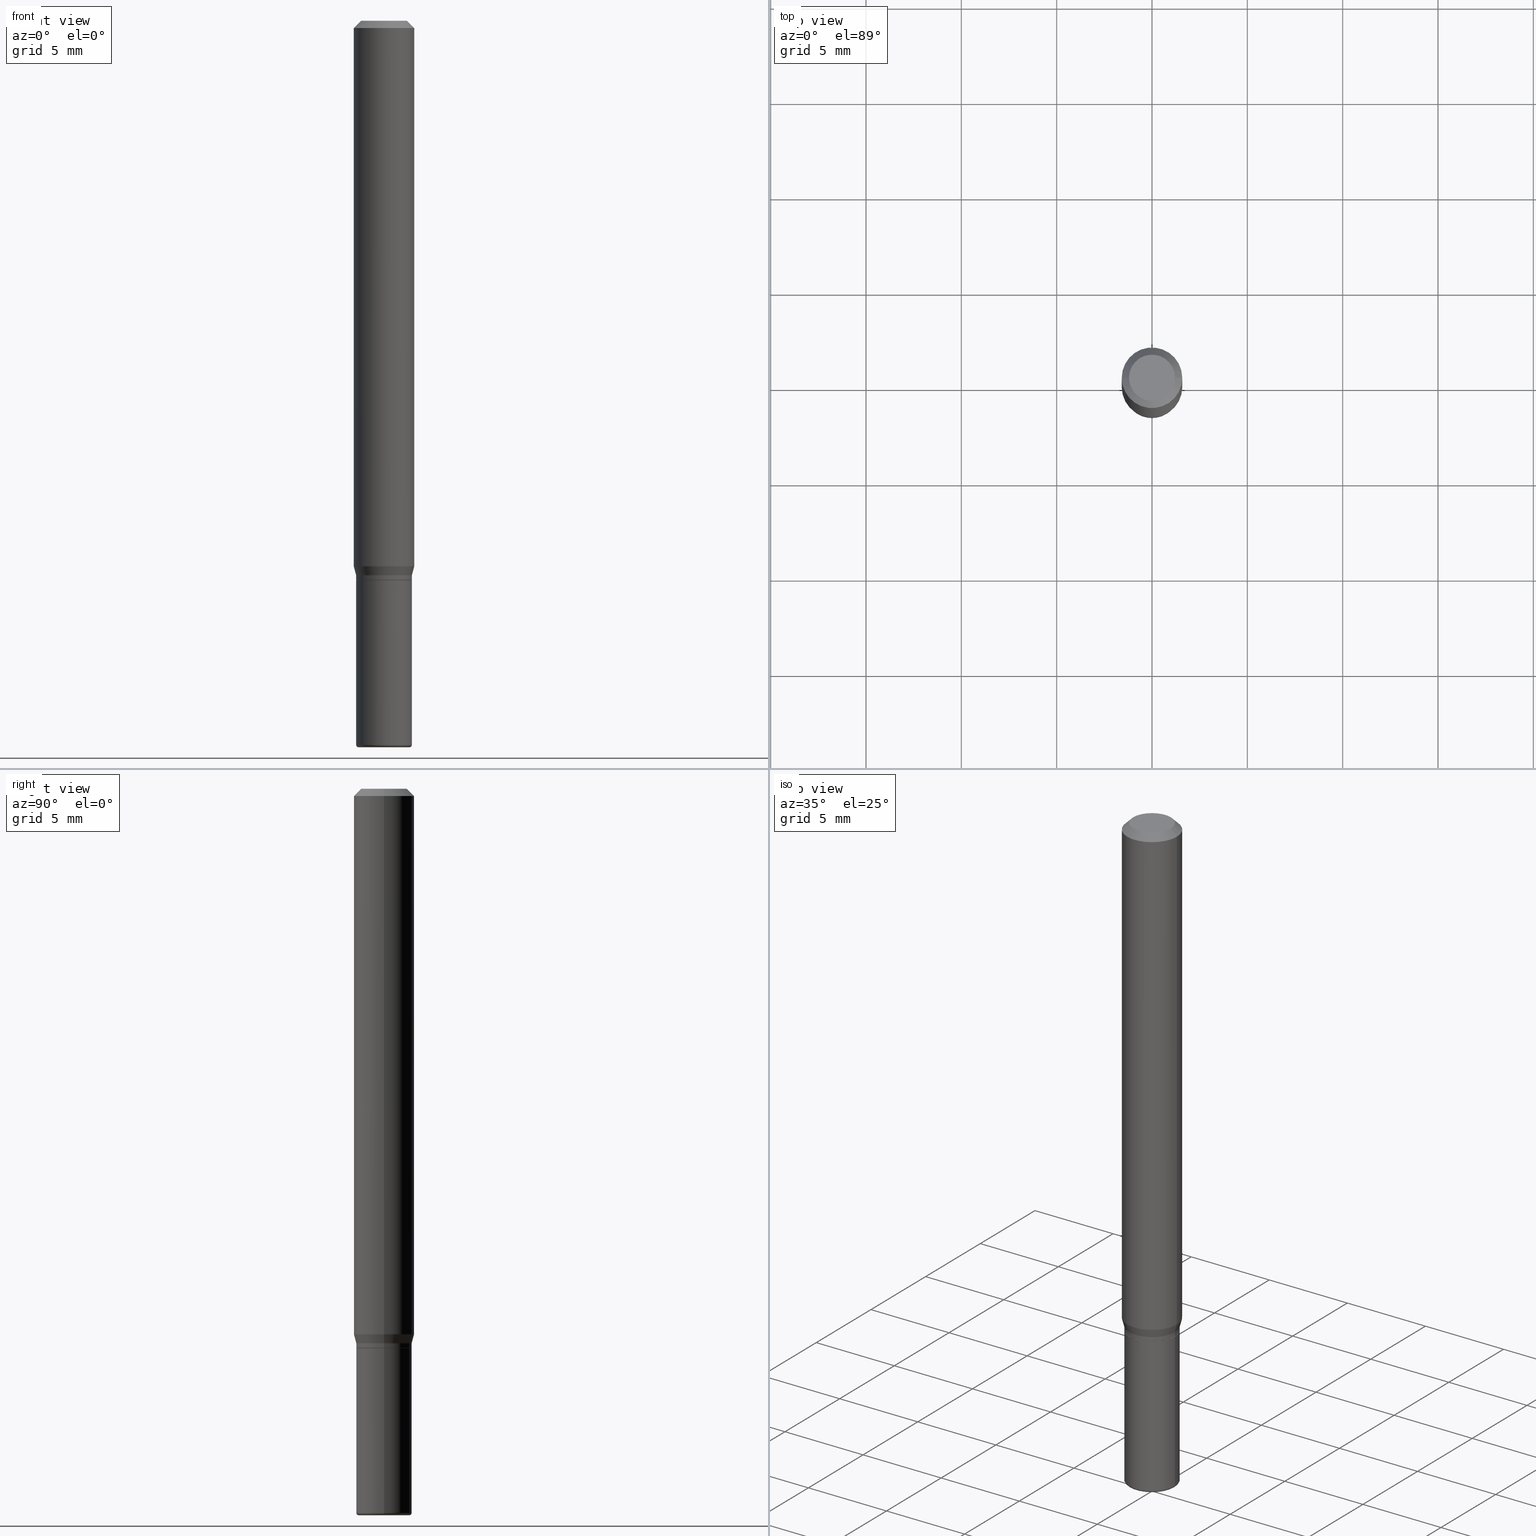
[diagram: canonical four-view strip — front | top / right | iso, engineering-drawing reading convention]
A machine part, canonical four-view strip (front | top / right | iso — engineering-drawing reading convention). The complete STEP part file that produces these views, byte-faithful:
ISO-10303-21;
HEADER;
FILE_DESCRIPTION (( 'STEP AP203' ),
    '1' );
FILE_NAME ('09107.STEP',
    '2024-02-29T22:12:22',
    ( '' ),
    ( '' ),
    'SwSTEP 2.0',
    'SolidWorks 2023',
    '' );
FILE_SCHEMA (( 'CONFIG_CONTROL_DESIGN' ));
ENDSEC;

DATA;
#1 = CARTESIAN_POINT ( 'NONE',  ( 0.05750000000000008576, -4.015203539669609078E-16, 2.803801646082667145E-30 ) ) ;
#2 = ORIENTED_EDGE ( 'NONE', *, *, #463, .F. ) ;
#3 = VECTOR ( 'NONE', #17, 39.37007874015748143 ) ;
#4 = CARTESIAN_POINT ( 'NONE',  ( 0.06250000000000000000, -4.888073874380378612E-16, -0.01499999999999970281 ) ) ;
#5 = CONICAL_SURFACE ( 'NONE', #368, 0.05700000000000008532, 0.7853981633975507526 ) ;
#6 = EDGE_CURVE ( 'NONE', #97, #342, #143, .T. ) ;
#7 = ORIENTED_EDGE ( 'NONE', *, *, #343, .F. ) ;
#8 = CARTESIAN_POINT ( 'NONE',  ( 3.655975865246779122E-29, -5.219764601570503141E-15, -1.495000000000000107 ) ) ;
#9 = EDGE_LOOP ( 'NONE', ( #447, #286, #411, #105 ) ) ;
#10 = DIRECTION ( 'NONE',  ( 1.000000000000000000, -6.982962677686271444E-15, 0.000000000000000000 ) ) ;
#11 = CARTESIAN_POINT ( 'NONE',  ( 3.668203209277632395E-31, -5.237222008264614861E-17, -0.01499999999999970281 ) ) ;
#12 = CARTESIAN_POINT ( 'NONE',  ( 0.05750000000000008576, -4.432435559661373477E-15, -1.154500000000000304 ) ) ;
#13 = AXIS2_PLACEMENT_3D ( 'NONE', #373, #42, #365 ) ;
#14 = CIRCLE ( 'NONE', #318, 0.05750000000000008576 ) ;
#15 = ORIENTED_EDGE ( 'NONE', *, *, #188, .T. ) ;
#16 = PRODUCT_DEFINITION_SHAPE ( 'NONE', 'NONE',  #117 ) ;
#17 = DIRECTION ( 'NONE',  ( -2.445468806185136877E-29, 3.491481338843145188E-15, 1.000000000000000000 ) ) ;
#18 = CARTESIAN_POINT ( 'NONE',  ( -6.680649051745406845E-45, 9.538196290434862081E-31, 2.731847993664263218E-16 ) ) ;
#19 = CARTESIAN_POINT ( 'NONE',  ( 3.668203209277632395E-31, -5.237222008264614861E-17, -0.01499999999999970281 ) ) ;
#20 = DIRECTION ( 'NONE',  ( 1.000000000000000000, -6.982962677686266711E-15, 4.852736867747365086E-29 ) ) ;
#21 = CARTESIAN_POINT ( 'NONE',  ( 0.05250000000000000500, -5.603827548843248915E-15, -1.500000000000000444 ) ) ;
#22 = CC_DESIGN_PERSON_AND_ORGANIZATION_ASSIGNMENT ( #70, #470, ( #117 ) ) ;
#23 = CIRCLE ( 'NONE', #282, 0.05700000000000008532 ) ;
#24 = ADVANCED_FACE ( 'NONE', ( #179 ), #258, .T. ) ;
#25 =( LENGTH_UNIT ( ) NAMED_UNIT ( * ) SI_UNIT ( $, .METRE. ) );
#26 = APPROVAL_STATUS ( 'not_yet_approved' ) ;
#27 = CARTESIAN_POINT ( 'NONE',  ( -0.05750000000000016903, -4.217650700905109109E-15, -1.495000000000000107 ) ) ;
#28 = SECURITY_CLASSIFICATION ( '', '', #324 ) ;
#29 = APPROVAL_DATE_TIME ( #235, #172 ) ;
#30 = DIRECTION ( 'NONE',  ( 1.000000000000000000, -6.982962677686262766E-15, 0.000000000000000000 ) ) ;
#31 = COORDINATED_UNIVERSAL_TIME_OFFSET ( 5, 0, .BEHIND. ) ;
#32 = DIRECTION ( 'NONE',  ( 2.438088387897960049E-29, -3.491481338843145188E-15, -1.000000000000000000 ) ) ;
#33 = DIRECTION ( 'NONE',  ( -1.000000000000000000, 7.105427357601061812E-15, 0.000000000000000000 ) ) ;
#34 = EDGE_LOOP ( 'NONE', ( #38, #169, #90, #83 ) ) ;
#35 = VECTOR ( 'NONE', #208, 39.37007874015748143 ) ;
#36 = VECTOR ( 'NONE', #243, 39.37007874015748143 ) ;
#37 = CARTESIAN_POINT ( 'NONE',  ( -0.05750000000000000250, -4.217650700905109898E-15, -1.155000000000000027 ) ) ;
#38 = ORIENTED_EDGE ( 'NONE', *, *, #240, .F. ) ;
#39 = CARTESIAN_POINT ( 'NONE',  ( 2.824516471143833307E-29, -4.032660946363833383E-15, -1.155000000000000027 ) ) ;
#40 = ORIENTED_EDGE ( 'NONE', *, *, #269, .T. ) ;
#41 = ADVANCED_FACE ( 'NONE', ( #461 ), #167, .T. ) ;
#42 = DIRECTION ( 'NONE',  ( -2.438088387897960049E-29, 3.491481338843145188E-15, 1.000000000000000000 ) ) ;
#43 = ORIENTED_EDGE ( 'NONE', *, *, #102, .F. ) ;
#44 = AXIS2_PLACEMENT_3D ( 'NONE', #49, #217, #96 ) ;
#45 = DIRECTION ( 'NONE',  ( 1.000000000000000000, -6.982962677686263555E-15, 0.000000000000000000 ) ) ;
#46 = ORIENTED_EDGE ( 'NONE', *, *, #514, .F. ) ;
#47 = CARTESIAN_POINT ( 'NONE',  ( -0.06250000000000000000, -1.548394002303359430E-15, -0.01499999999999970281 ) ) ;
#48 = VERTEX_POINT ( 'NONE', #491 ) ;
#49 = CARTESIAN_POINT ( 'NONE',  ( 2.824516471143833307E-29, -4.032660946363833383E-15, -1.155000000000000027 ) ) ;
#50 = ORIENTED_EDGE ( 'NONE', *, *, #463, .T. ) ;
#51 = ADVANCED_FACE ( 'NONE', ( #94 ), #5, .T. ) ;
#52 = DIRECTION ( 'NONE',  ( -1.000000000000000000, 6.982962677686265922E-15, -4.876176775795935793E-29 ) ) ;
#53 = AXIS2_PLACEMENT_3D ( 'NONE', #281, #444, #314 ) ;
#54 = AXIS2_PLACEMENT_3D ( 'NONE', #425, #497, #141 ) ;
#55 = CIRCLE ( 'NONE', #185, 0.05750000000000000250 ) ;
#56 = ORIENTED_EDGE ( 'NONE', *, *, #93, .T. ) ;
#57 = PERSON_AND_ORGANIZATION ( #75, #142 ) ;
#58 = CARTESIAN_POINT ( 'NONE',  ( 0.000000000000000000, 0.000000000000000000, 0.000000000000000000 ) ) ;
#59 = DIRECTION ( 'NONE',  ( 1.000000000000000000, -6.982962677686267499E-15, 0.000000000000000000 ) ) ;
#60 = EDGE_CURVE ( 'NONE', #364, #207, #55, .T. ) ;
#61 = CARTESIAN_POINT ( 'NONE',  ( 3.668203209277706016E-29, -5.237222008264719754E-15, -1.500000000000000444 ) ) ;
#62 = VECTOR ( 'NONE', #137, 39.37007874015748143 ) ;
#63 = CIRCLE ( 'NONE', #89, 0.05700000000000008532 ) ;
#64 = ORIENTED_EDGE ( 'NONE', *, *, #91, .F. ) ;
#65 = PLANE ( 'NONE',  #472 ) ;
#66 = PERSON_AND_ORGANIZATION ( #75, #142 ) ;
#67 = DIRECTION ( 'NONE',  ( -2.445468806185136597E-29, 3.491481338843145583E-15, 1.000000000000000000 ) ) ;
#68 = DIRECTION ( 'NONE',  ( 1.000000000000000000, -6.982962677686274599E-15, 0.000000000000000000 ) ) ;
#69 = LOCAL_TIME ( 17, 12, 22.00000000000000000, #159 ) ;
#70 = PERSON_AND_ORGANIZATION ( #75, #142 ) ;
#71 = CARTESIAN_POINT ( 'NONE',  ( 3.316907271900976589E-16, 0.04750000000000000749, -2.925296391183627249E-17 ) ) ;
#72 = FACE_OUTER_BOUND ( 'NONE', #319, .T. ) ;
#73 = PRODUCT_RELATED_PRODUCT_CATEGORY ( 'detail', '', ( #95 ) ) ;
#74 = EDGE_LOOP ( 'NONE', ( #357, #284, #480, #50 ) ) ;
#75 = PERSON ( 'UNSPECIFIED', 'UNSPECIFIED', 'UNSPECIFIED', ('UNSPECIFIED'), ('UNSPECIFIED'), ('UNSPECIFIED') ) ;
#76 = DATE_TIME_ROLE ( 'creation_date' ) ;
#77 = DIRECTION ( 'NONE',  ( 1.000000000000000000, -6.982962677686274599E-15, 0.000000000000000000 ) ) ;
#78 = VERTEX_POINT ( 'NONE', #101 ) ;
#79 = CARTESIAN_POINT ( 'NONE',  ( -0.05750000000000008576, 4.085620730620582163E-16, -2.828387676896575267E-30 ) ) ;
#80 = VERTEX_POINT ( 'NONE', #377 ) ;
#81 = EDGE_CURVE ( 'NONE', #48, #275, #493, .T. ) ;
#82 = DIRECTION ( 'NONE',  ( -2.445468806185136597E-29, 3.491481338843145583E-15, 1.000000000000000000 ) ) ;
#83 = ORIENTED_EDGE ( 'NONE', *, *, #269, .F. ) ;
#84 = DIRECTION ( 'NONE',  ( 1.000000000000000000, -6.982962677686274599E-15, 0.000000000000000000 ) ) ;
#85 = EDGE_LOOP ( 'NONE', ( #136, #56 ) ) ;
#86 = AXIS2_PLACEMENT_3D ( 'NONE', #18, #391, #20 ) ;
#87 = AXIS2_PLACEMENT_3D ( 'NONE', #19, #257, #346 ) ;
#88 = DIRECTION ( 'NONE',  ( 0.7071067811866199593, -2.468850131083015945E-15, 0.7071067811864750752 ) ) ;
#89 = AXIS2_PLACEMENT_3D ( 'NONE', #39, #376, #10 ) ;
#90 = ORIENTED_EDGE ( 'NONE', *, *, #209, .T. ) ;
#91 = EDGE_CURVE ( 'NONE', #237, #414, #458, .T. ) ;
#92 = CARTESIAN_POINT ( 'NONE',  ( 0.06250000000000000000, -4.369029371579589866E-15, -1.126339745962156247 ) ) ;
#93 = EDGE_CURVE ( 'NONE', #129, #237, #453, .T. ) ;
#94 = FACE_OUTER_BOUND ( 'NONE', #123, .T. ) ;
#95 = PRODUCT ( '09107', '09107', '', ( #459 ) ) ;
#96 = DIRECTION ( 'NONE',  ( 1.000000000000000000, -6.982962677686271444E-15, 0.000000000000000000 ) ) ;
#97 = VERTEX_POINT ( 'NONE', #180 ) ;
#98 = ADVANCED_FACE ( 'NONE', ( #171 ), #301, .T. ) ;
#99 = APPLICATION_PROTOCOL_DEFINITION ( 'international standard', 'config_control_design', 1994, #289 ) ;
#100 = CC_DESIGN_APPROVAL ( #172, ( #28 ) ) ;
#101 = CARTESIAN_POINT ( 'NONE',  ( -0.05750000000000005801, -3.538844527143739869E-15, -1.145000000000000462 ) ) ;
#102 = EDGE_CURVE ( 'NONE', #486, #97, #278, .T. ) ;
#103 = DIRECTION ( 'NONE',  ( 1.000000000000000000, -6.982962677686274599E-15, 0.000000000000000000 ) ) ;
#104 = ADVANCED_FACE ( 'NONE', ( #355 ), #295, .T. ) ;
#105 = ORIENTED_EDGE ( 'NONE', *, *, #225, .F. ) ;
#106 = FACE_OUTER_BOUND ( 'NONE', #467, .T. ) ;
#107 = VECTOR ( 'NONE', #291, 39.37007874015748143 ) ;
#108 = DIRECTION ( 'NONE',  ( 1.000000000000000000, -6.982962677686265922E-15, 4.876176775795935793E-29 ) ) ;
#109 = PERSON_AND_ORGANIZATION ( #75, #142 ) ;
#110 = DIRECTION ( 'NONE',  ( 1.000000000000000000, -6.982962677686268288E-15, 4.883557194083113462E-29 ) ) ;
#111 = ADVANCED_FACE ( 'NONE', ( #436 ), #428, .T. ) ;
#112 = COORDINATED_UNIVERSAL_TIME_OFFSET ( 5, 0, .BEHIND. ) ;
#113 = LINE ( 'NONE', #203, #266 ) ;
#114 = AXIS2_PLACEMENT_3D ( 'NONE', #466, #420, #300 ) ;
#115 = EDGE_LOOP ( 'NONE', ( #252, #200, #484, #329 ) ) ;
#116 = CIRCLE ( 'NONE', #442, 0.05750000000000005801 ) ;
#117 = PRODUCT_DEFINITION ( 'UNKNOWN', '', #229, #323 ) ;
#118 = APPROVAL_STATUS ( 'not_yet_approved' ) ;
#119 = DIRECTION ( 'NONE',  ( -2.445468806185136597E-29, 3.491481338843145583E-15, 1.000000000000000000 ) ) ;
#120 = ORIENTED_EDGE ( 'NONE', *, *, #127, .T. ) ;
#121 = EDGE_LOOP ( 'NONE', ( #299, #15, #454, #322 ) ) ;
#122 = DIRECTION ( 'NONE',  ( -2.445468806185136597E-29, 3.491481338843145583E-15, 1.000000000000000000 ) ) ;
#123 = EDGE_LOOP ( 'NONE', ( #43, #120, #182, #131 ) ) ;
#124 = AXIS2_PLACEMENT_3D ( 'NONE', #399, #511, #110 ) ;
#125 = DIRECTION ( 'NONE',  ( 1.000000000000000000, -6.982962677686267499E-15, 0.000000000000000000 ) ) ;
#126 = ORIENTED_EDGE ( 'NONE', *, *, #60, .T. ) ;
#127 = EDGE_CURVE ( 'NONE', #486, #80, #23, .T. ) ;
#128 = FACE_OUTER_BOUND ( 'NONE', #34, .T. ) ;
#129 = VERTEX_POINT ( 'NONE', #517 ) ;
#130 = FACE_OUTER_BOUND ( 'NONE', #310, .T. ) ;
#131 = ORIENTED_EDGE ( 'NONE', *, *, #6, .F. ) ;
#132 = CIRCLE ( 'NONE', #156, 0.05750000000000005801 ) ;
#133 = APPROVAL ( #26, 'UNSPECIFIED' ) ;
#134 = DIRECTION ( 'NONE',  ( -2.445468806185136597E-29, 3.491481338843145583E-15, 1.000000000000000000 ) ) ;
#135 = VECTOR ( 'NONE', #475, 39.37007874015748143 ) ;
#136 = ORIENTED_EDGE ( 'NONE', *, *, #153, .T. ) ;
#137 = DIRECTION ( 'NONE',  ( 0.7071067811865479058, -7.319954787623257623E-15, -0.7071067811865471286 ) ) ;
#138 = DIRECTION ( 'NONE',  ( 0.2588190451025201844, 1.565188264969631237E-15, 0.9659258262890684232 ) ) ;
#139 = CARTESIAN_POINT ( 'NONE',  ( 0.000000000000000000, 0.000000000000000000, 0.000000000000000000 ) ) ;
#140 = ORIENTED_EDGE ( 'NONE', *, *, #307, .F. ) ;
#141 = DIRECTION ( 'NONE',  ( 1.000000000000000000, -6.982962677686273810E-15, 0.000000000000000000 ) ) ;
#142 = ORGANIZATION ( 'UNSPECIFIED', 'UNSPECIFIED', '' ) ;
#143 = CIRCLE ( 'NONE', #405, 0.05750000000000008576 ) ;
#144 = ADVANCED_FACE ( 'NONE', ( #513 ), #421, .T. ) ;
#145 = LINE ( 'NONE', #384, #3 ) ;
#146 = CARTESIAN_POINT ( 'NONE',  ( 2.800061783081982883E-29, -3.997746132975403311E-15, -1.145000000000000462 ) ) ;
#147 = EDGE_CURVE ( 'NONE', #502, #275, #239, .T. ) ;
#148 = CC_DESIGN_DATE_AND_TIME_ASSIGNMENT ( #510, #431, ( #28 ) ) ;
#149 = VERTEX_POINT ( 'NONE', #437 ) ;
#150 = COORDINATED_UNIVERSAL_TIME_OFFSET ( 5, 0, .BEHIND. ) ;
#151 = DIRECTION ( 'NONE',  ( 7.105427357601001859E-15, 1.000000000000000000, -3.491481338843145583E-15 ) ) ;
#152 = DIRECTION ( 'NONE',  ( 1.000000000000000000, -6.982962677686271444E-15, 0.000000000000000000 ) ) ;
#153 = EDGE_CURVE ( 'NONE', #237, #129, #452, .T. ) ;
#154 = APPROVAL_ROLE ( '' ) ;
#155 = CARTESIAN_POINT ( 'NONE',  ( -0.05700000000000008532, -3.627651586980575917E-15, -1.155000000000000027 ) ) ;
#156 = AXIS2_PLACEMENT_3D ( 'NONE', #367, #212, #84 ) ;
#157 = AXIS2_PLACEMENT_3D ( 'NONE', #162, #271, #471 ) ;
#158 = EDGE_CURVE ( 'NONE', #244, #196, #464, .T. ) ;
#159 = COORDINATED_UNIVERSAL_TIME_OFFSET ( 5, 0, .BEHIND. ) ;
#160 = CARTESIAN_POINT ( 'NONE',  ( 3.668203209277632395E-31, -5.237222008264614861E-17, -0.01499999999999970281 ) ) ;
#161 = ORIENTED_EDGE ( 'NONE', *, *, #501, .F. ) ;
#162 = CARTESIAN_POINT ( 'NONE',  ( 3.655975865246779122E-29, -5.219764601570503141E-15, -1.495000000000000107 ) ) ;
#163 = EDGE_LOOP ( 'NONE', ( #126, #489 ) ) ;
#164 = UNCERTAINTY_MEASURE_WITH_UNIT (LENGTH_MEASURE( 1.000000000000000082E-05 ), #260, 'distance_accuracy_value', 'NONE');
#165 = PLANE ( 'NONE',  #13 ) ;
#166 = ORIENTED_EDGE ( 'NONE', *, *, #158, .T. ) ;
#167 = CONICAL_SURFACE ( 'NONE', #274, 0.06250000000000000000, 0.7853981633974488341 ) ;
#168 = DIRECTION ( 'NONE',  ( -2.445468806185136597E-29, 3.491481338843145583E-15, 1.000000000000000000 ) ) ;
#169 = ORIENTED_EDGE ( 'NONE', *, *, #307, .T. ) ;
#170 = CARTESIAN_POINT ( 'NONE',  ( 3.655975865246779122E-29, -5.219764601570503141E-15, -1.495000000000000107 ) ) ;
#171 = FACE_OUTER_BOUND ( 'NONE', #115, .T. ) ;
#172 = APPROVAL ( #118, 'UNSPECIFIED' ) ;
#173 = LINE ( 'NONE', #1, #35 ) ;
#174 = ORIENTED_EDGE ( 'NONE', *, *, #343, .T. ) ;
#175 = VECTOR ( 'NONE', #448, 39.37007874015748143 ) ;
#176 = AXIS2_PLACEMENT_3D ( 'NONE', #374, #293, #108 ) ;
#177 = DIRECTION ( 'NONE',  ( -2.445468806185136597E-29, 3.491481338843145583E-15, 1.000000000000000000 ) ) ;
#178 = CIRCLE ( 'NONE', #406, 0.005000000000000177046 ) ;
#179 = FACE_OUTER_BOUND ( 'NONE', #210, .T. ) ;
#180 = CARTESIAN_POINT ( 'NONE',  ( -0.05750000000000008576, -3.622353132632354304E-15, -1.154500000000000304 ) ) ;
#181 = FACE_OUTER_BOUND ( 'NONE', #163, .T. ) ;
#182 = ORIENTED_EDGE ( 'NONE', *, *, #397, .T. ) ;
#183 =( NAMED_UNIT ( * ) SI_UNIT ( $, .STERADIAN. ) SOLID_ANGLE_UNIT ( ) );
#184 = CIRCLE ( 'NONE', #349, 0.05250000000000000500 ) ;
#185 = AXIS2_PLACEMENT_3D ( 'NONE', #254, #419, #423 ) ;
#186 = EDGE_CURVE ( 'NONE', #78, #502, #232, .T. ) ;
#187 = FACE_OUTER_BOUND ( 'NONE', #121, .T. ) ;
#188 = EDGE_CURVE ( 'NONE', #78, #48, #116, .T. ) ;
#189 = APPROVAL_PERSON_ORGANIZATION ( #66, #450, #473 ) ;
#190 = CARTESIAN_POINT ( 'NONE',  ( 2.754428713916944301E-29, -3.932594204224198197E-15, -1.126339745962156247 ) ) ;
#191 = CC_DESIGN_APPROVAL ( #133, ( #117 ) ) ;
#192 = CARTESIAN_POINT ( 'NONE',  ( 0.05250000000000000500, -5.586370142149032301E-15, -1.495000000000000107 ) ) ;
#193 = EDGE_CURVE ( 'NONE', #196, #207, #230, .T. ) ;
#194 = CALENDAR_DATE ( 2024, 29, 2 ) ;
#195 = CARTESIAN_POINT ( 'NONE',  ( -0.04750000000000000749, 3.578768372314221353E-16, 2.731847993664239060E-16 ) ) ;
#196 = VERTEX_POINT ( 'NONE', #27 ) ;
#197 = PERSON_AND_ORGANIZATION_ROLE ( 'creator' ) ;
#198 = DIRECTION ( 'NONE',  ( -2.445468806185136597E-29, 3.491481338843145583E-15, 1.000000000000000000 ) ) ;
#199 = TOROIDAL_SURFACE ( 'NONE', #490, 0.05250000000000000500, 0.005000000000000177046 ) ;
#200 = ORIENTED_EDGE ( 'NONE', *, *, #6, .T. ) ;
#201 = AXIS2_PLACEMENT_3D ( 'NONE', #190, #439, #30 ) ;
#202 = APPROVAL_ROLE ( '' ) ;
#203 = CARTESIAN_POINT ( 'NONE',  ( 0.06250000000000000000, -4.364351673553916694E-16, 3.047610484872459871E-30 ) ) ;
#204 = EDGE_CURVE ( 'NONE', #275, #502, #224, .T. ) ;
#205 = ORIENTED_EDGE ( 'NONE', *, *, #204, .F. ) ;
#206 = DIRECTION ( 'NONE',  ( -2.445468806185136597E-29, 3.491481338843145583E-15, 1.000000000000000000 ) ) ;
#207 = VERTEX_POINT ( 'NONE', #37 ) ;
#208 = DIRECTION ( 'NONE',  ( -2.445468806185136877E-29, 3.491481338843145188E-15, 1.000000000000000000 ) ) ;
#209 = EDGE_CURVE ( 'NONE', #440, #244, #178, .T. ) ;
#210 = EDGE_LOOP ( 'NONE', ( #331, #40, #174, #369 ) ) ;
#211 = AXIS2_PLACEMENT_3D ( 'NONE', #304, #462, #500 ) ;
#212 = DIRECTION ( 'NONE',  ( -2.445468806185136597E-29, 3.491481338843145583E-15, 1.000000000000000000 ) ) ;
#213 = CC_DESIGN_PERSON_AND_ORGANIZATION_ASSIGNMENT ( #219, #380, ( #95 ) ) ;
#214 = EDGE_LOOP ( 'NONE', ( #246, #249, #372, #64 ) ) ;
#215 = CARTESIAN_POINT ( 'NONE',  ( 2.823293736740741066E-29, -4.030915205694411879E-15, -1.154500000000000304 ) ) ;
#216 = DIRECTION ( 'NONE',  ( -2.445468806185136597E-29, 3.491481338843145583E-15, 1.000000000000000000 ) ) ;
#217 = DIRECTION ( 'NONE',  ( -2.445468806185136597E-29, 3.491481338843145583E-15, 1.000000000000000000 ) ) ;
#218 = CARTESIAN_POINT ( 'NONE',  ( 2.824516471143833307E-29, -4.032660946363833383E-15, -1.155000000000000027 ) ) ;
#219 = PERSON_AND_ORGANIZATION ( #75, #142 ) ;
#220 = CARTESIAN_POINT ( 'NONE',  ( -0.06250000000000000000, 3.840629472727455270E-16, -0.01499999999999970281 ) ) ;
#221 = DIRECTION ( 'NONE',  ( -2.445468806185136597E-29, 3.491481338843145583E-15, 1.000000000000000000 ) ) ;
#222 = PLANE ( 'NONE',  #211 ) ;
#223 = DIRECTION ( 'NONE',  ( -2.445468806185136597E-29, 3.491481338843145583E-15, 1.000000000000000000 ) ) ;
#224 = CIRCLE ( 'NONE', #201, 0.06250000000000000000 ) ;
#225 = EDGE_CURVE ( 'NONE', #275, #362, #113, .T. ) ;
#226 = CARTESIAN_POINT ( 'NONE',  ( 0.05750000000000005801, -4.399266486942364120E-15, -1.145000000000000462 ) ) ;
#227 = CC_DESIGN_PERSON_AND_ORGANIZATION_ASSIGNMENT ( #395, #354, ( #229 ) ) ;
#228 = CALENDAR_DATE ( 2024, 29, 2 ) ;
#229 = PRODUCT_DEFINITION_FORMATION_WITH_SPECIFIED_SOURCE ( 'ANY', '', #95, .NOT_KNOWN. ) ;
#230 = LINE ( 'NONE', #79, #36 ) ;
#231 = CALENDAR_DATE ( 2024, 29, 2 ) ;
#232 = LINE ( 'NONE', #394, #135 ) ;
#233 = ADVANCED_FACE ( 'NONE', ( #363 ), #321, .F. ) ;
#234 = EDGE_LOOP ( 'NONE', ( #277, #478, #280, #515 ) ) ;
#235 = DATE_AND_TIME ( #228, #403 ) ;
#236 = CYLINDRICAL_SURFACE ( 'NONE', #250, 0.05750000000000008576 ) ;
#237 = VERTEX_POINT ( 'NONE', #195 ) ;
#238 = DIRECTION ( 'NONE',  ( -2.445468806185136597E-29, 3.491481338843145583E-15, 1.000000000000000000 ) ) ;
#239 = CIRCLE ( 'NONE', #339, 0.06250000000000000000 ) ;
#240 = EDGE_CURVE ( 'NONE', #149, #196, #413, .T. ) ;
#241 = ORIENTED_EDGE ( 'NONE', *, *, #259, .T. ) ;
#242 = VECTOR ( 'NONE', #138, 39.37007874015748143 ) ;
#243 = DIRECTION ( 'NONE',  ( -2.445468806185136877E-29, 3.491481338843145188E-15, 1.000000000000000000 ) ) ;
#244 = VERTEX_POINT ( 'NONE', #276 ) ;
#245 = DIRECTION ( 'NONE',  ( 1.000000000000000000, -6.982962677686266711E-15, 0.000000000000000000 ) ) ;
#246 = ORIENTED_EDGE ( 'NONE', *, *, #93, .F. ) ;
#247 = ADVANCED_FACE ( 'NONE', ( #72 ), #236, .T. ) ;
#248 = DIRECTION ( 'NONE',  ( 1.000000000000000000, -6.982962677686265922E-15, 4.876176775795935793E-29 ) ) ;
#249 = ORIENTED_EDGE ( 'NONE', *, *, #353, .T. ) ;
#250 = AXIS2_PLACEMENT_3D ( 'NONE', #507, #198, #248 ) ;
#251 = LINE ( 'NONE', #446, #62 ) ;
#252 = ORIENTED_EDGE ( 'NONE', *, *, #393, .F. ) ;
#253 = DIRECTION ( 'NONE',  ( 1.000000000000000000, -6.982962677686266711E-15, 4.876176775795935793E-29 ) ) ;
#254 = CARTESIAN_POINT ( 'NONE',  ( 2.824516471143833307E-29, -4.032660946363833383E-15, -1.155000000000000027 ) ) ;
#255 = ORIENTED_EDGE ( 'NONE', *, *, #225, .T. ) ;
#256 = MANIFOLD_SOLID_BREP ( 'Body-Move/Copy2[2]', #338 ) ;
#257 = DIRECTION ( 'NONE',  ( -2.445468806185136597E-29, 3.491481338843145583E-15, 1.000000000000000000 ) ) ;
#258 = CYLINDRICAL_SURFACE ( 'NONE', #176, 0.05750000000000008576 ) ;
#259 = EDGE_CURVE ( 'NONE', #342, #97, #14, .T. ) ;
#260 =( CONVERSION_BASED_UNIT ( 'INCH', #382 ) LENGTH_UNIT ( ) NAMED_UNIT ( #371 ) );
#261 = MANIFOLD_SOLID_BREP ( 'Body-Move/Copy2[1]', #505 ) ;
#262 = CARTESIAN_POINT ( 'NONE',  ( -0.05700000000000008532, -3.625002359806464716E-15, -1.155000000000000027 ) ) ;
#263 = CC_DESIGN_PERSON_AND_ORGANIZATION_ASSIGNMENT ( #320, #272, ( #28 ) ) ;
#264 = CIRCLE ( 'NONE', #335, 0.06250000000000000000 ) ;
#265 = CARTESIAN_POINT ( 'NONE',  ( -0.06250000000000000000, -3.488504994374134792E-15, -1.126339745962156247 ) ) ;
#266 = VECTOR ( 'NONE', #273, 39.37007874015748143 ) ;
#267 = CALENDAR_DATE ( 2024, 29, 2 ) ;
#268 = ORIENTED_EDGE ( 'NONE', *, *, #287, .F. ) ;
#269 = EDGE_CURVE ( 'NONE', #196, #244, #311, .T. ) ;
#270 = SHAPE_DEFINITION_REPRESENTATION ( #16, #499 ) ;
#271 = DIRECTION ( 'NONE',  ( -2.445468806185136597E-29, 3.491481338843145583E-15, 1.000000000000000000 ) ) ;
#272 = PERSON_AND_ORGANIZATION_ROLE ( 'classification_officer' ) ;
#273 = DIRECTION ( 'NONE',  ( -2.445468806185136877E-29, 3.491481338843145188E-15, 1.000000000000000000 ) ) ;
#274 = AXIS2_PLACEMENT_3D ( 'NONE', #11, #417, #336 ) ;
#275 = VERTEX_POINT ( 'NONE', #92 ) ;
#276 = CARTESIAN_POINT ( 'NONE',  ( 0.05750000000000018291, -5.621284955537464739E-15, -1.495000000000000107 ) ) ;
#277 = ORIENTED_EDGE ( 'NONE', *, *, #287, .T. ) ;
#278 = LINE ( 'NONE', #155, #503 ) ;
#279 = EDGE_CURVE ( 'NONE', #48, #78, #132, .T. ) ;
#280 = ORIENTED_EDGE ( 'NONE', *, *, #259, .F. ) ;
#281 = CARTESIAN_POINT ( 'NONE',  ( -6.680649051745406845E-45, 9.538196290434862081E-31, 2.731847993664263218E-16 ) ) ;
#282 = AXIS2_PLACEMENT_3D ( 'NONE', #432, #360, #152 ) ;
#283 = ADVANCED_FACE ( 'NONE', ( #130 ), #165, .F. ) ;
#284 = ORIENTED_EDGE ( 'NONE', *, *, #153, .F. ) ;
#285 = DIRECTION ( 'NONE',  ( 1.000000000000000000, -6.982962677686266711E-15, 4.876176775795935793E-29 ) ) ;
#286 = ORIENTED_EDGE ( 'NONE', *, *, #390, .T. ) ;
#287 = EDGE_CURVE ( 'NONE', #80, #486, #63, .T. ) ;
#288 = LINE ( 'NONE', #455, #175 ) ;
#289 = APPLICATION_CONTEXT ( 'configuration controlled 3d designs of mechanical parts and assemblies' ) ;
#290 = ORIENTED_EDGE ( 'NONE', *, *, #279, .T. ) ;
#291 = DIRECTION ( 'NONE',  ( -2.445468806185136877E-29, 3.491481338843145188E-15, 1.000000000000000000 ) ) ;
#292 = AXIS2_PLACEMENT_3D ( 'NONE', #492, #82, #253 ) ;
#293 = DIRECTION ( 'NONE',  ( -2.445468806185136597E-29, 3.491481338843145583E-15, 1.000000000000000000 ) ) ;
#294 = LOCAL_TIME ( 17, 12, 22.00000000000000000, #112 ) ;
#295 = CONICAL_SURFACE ( 'NONE', #348, 0.05750000000000005801, 0.2617993877991488527 ) ;
#296 = DIRECTION ( 'NONE',  ( -2.445468806185136597E-29, 3.491481338843145583E-15, 1.000000000000000000 ) ) ;
#297 = ORIENTED_EDGE ( 'NONE', *, *, #60, .F. ) ;
#298 = CARTESIAN_POINT ( 'NONE',  ( 3.668203209277632395E-31, -5.237222008264614861E-17, -0.01499999999999970281 ) ) ;
#299 = ORIENTED_EDGE ( 'NONE', *, *, #186, .F. ) ;
#300 = DIRECTION ( 'NONE',  ( 1.000000000000000000, 0.000000000000000000, 0.000000000000000000 ) ) ;
#301 = CYLINDRICAL_SURFACE ( 'NONE', #359, 0.05750000000000007189 ) ;
#302 = ADVANCED_FACE ( 'NONE', ( #483 ), #410, .T. ) ;
#303 = CONICAL_SURFACE ( 'NONE', #427, 0.05750000000000005801, 0.2617993877991488527 ) ;
#304 = CARTESIAN_POINT ( 'NONE',  ( 2.824516471143833307E-29, -4.032660946363833383E-15, -1.155000000000000027 ) ) ;
#305 = ADVANCED_FACE ( 'NONE', ( #340 ), #370, .T. ) ;
#306 =( NAMED_UNIT ( * ) PLANE_ANGLE_UNIT ( ) SI_UNIT ( $, .RADIAN. ) );
#307 = EDGE_CURVE ( 'NONE', #149, #440, #426, .T. ) ;
#308 = VECTOR ( 'NONE', #88, 39.37007874015748143 ) ;
#309 = APPLICATION_PROTOCOL_DEFINITION ( 'international standard', 'config_control_design', 1994, #441 ) ;
#310 = EDGE_LOOP ( 'NONE', ( #161, #140 ) ) ;
#311 = CIRCLE ( 'NONE', #385, 0.05750000000000018291 ) ;
#312 = DATE_AND_TIME ( #401, #294 ) ;
#313 = CARTESIAN_POINT ( 'NONE',  ( 2.754428713916944301E-29, -3.932594204224198197E-15, -1.126339745962156247 ) ) ;
#314 = DIRECTION ( 'NONE',  ( 1.000000000000000000, -6.982962677686266711E-15, 4.852736867747365086E-29 ) ) ;
#315 = COORDINATED_UNIVERSAL_TIME_OFFSET ( 5, 0, .BEHIND. ) ;
#316 = CC_DESIGN_APPROVAL ( #450, ( #229 ) ) ;
#317 = DIRECTION ( 'NONE',  ( 1.000000000000000000, -6.982962677686262766E-15, 0.000000000000000000 ) ) ;
#318 = AXIS2_PLACEMENT_3D ( 'NONE', #215, #415, #45 ) ;
#319 = EDGE_LOOP ( 'NONE', ( #166, #407, #297, #7 ) ) ;
#320 = PERSON_AND_ORGANIZATION ( #75, #142 ) ;
#321 = PLANE ( 'NONE',  #474 ) ;
#322 = ORIENTED_EDGE ( 'NONE', *, *, #147, .F. ) ;
#323 = DESIGN_CONTEXT ( 'detailed design', #289, 'design' ) ;
#324 = SECURITY_CLASSIFICATION_LEVEL ( 'unclassified' ) ;
#325 = DIRECTION ( 'NONE',  ( -1.000000000000000000, 6.982962677686266711E-15, 0.000000000000000000 ) ) ;
#326 = EDGE_LOOP ( 'NONE', ( #495, #398, #366, #409 ) ) ;
#327 = CARTESIAN_POINT ( 'NONE',  ( 0.05750000000000000250, -4.434181300330794192E-15, -1.155000000000000027 ) ) ;
#328 =( GEOMETRIC_REPRESENTATION_CONTEXT ( 3 ) GLOBAL_UNCERTAINTY_ASSIGNED_CONTEXT ( ( #164 ) ) GLOBAL_UNIT_ASSIGNED_CONTEXT ( ( #260, #306, #183 ) ) REPRESENTATION_CONTEXT ( 'NONE', 'WORKASPACE' ) );
#329 = ORIENTED_EDGE ( 'NONE', *, *, #188, .F. ) ;
#330 = DIRECTION ( 'NONE',  ( 1.000000000000000000, -6.982962677686268288E-15, 4.883557194083113462E-29 ) ) ;
#331 = ORIENTED_EDGE ( 'NONE', *, *, #193, .F. ) ;
#332 = CARTESIAN_POINT ( 'NONE',  ( 0.05700000000000008532, -4.430689818991951185E-15, -1.155000000000000027 ) ) ;
#333 = ORIENTED_EDGE ( 'NONE', *, *, #390, .F. ) ;
#334 = CARTESIAN_POINT ( 'NONE',  ( 3.668203209277706016E-29, -5.237222008264719754E-15, -1.500000000000000444 ) ) ;
#335 = AXIS2_PLACEMENT_3D ( 'NONE', #298, #296, #245 ) ;
#336 = DIRECTION ( 'NONE',  ( -1.000000000000000000, 6.982962677686266711E-15, 0.000000000000000000 ) ) ;
#337 = CONICAL_SURFACE ( 'NONE', #44, 0.05700000000000008532, 0.7853981633975507526 ) ;
#338 = CLOSED_SHELL ( 'NONE', ( #429, #416, #144, #305, #104, #434, #302, #41, #233, #498, #51, #98 ) ) ;
#339 = AXIS2_PLACEMENT_3D ( 'NONE', #313, #238, #317 ) ;
#340 = FACE_OUTER_BOUND ( 'NONE', #9, .T. ) ;
#341 = DIRECTION ( 'NONE',  ( 1.000000000000000000, -6.982962677686263555E-15, 0.000000000000000000 ) ) ;
#342 = VERTEX_POINT ( 'NONE', #12 ) ;
#343 = EDGE_CURVE ( 'NONE', #244, #364, #173, .T. ) ;
#344 = DIRECTION ( 'NONE',  ( 1.000000000000000000, -6.982962677686271444E-15, 0.000000000000000000 ) ) ;
#345 = DIRECTION ( 'NONE',  ( -2.445468806185136597E-29, 3.491481338843145583E-15, 1.000000000000000000 ) ) ;
#346 = DIRECTION ( 'NONE',  ( 1.000000000000000000, -6.982962677686266711E-15, 0.000000000000000000 ) ) ;
#347 = DIRECTION ( 'NONE',  ( -2.445468806185136597E-29, 3.491481338843145583E-15, 1.000000000000000000 ) ) ;
#348 = AXIS2_PLACEMENT_3D ( 'NONE', #469, #122, #77 ) ;
#349 = AXIS2_PLACEMENT_3D ( 'NONE', #61, #223, #59 ) ;
#350 = DIRECTION ( 'NONE',  ( -1.000000000000000000, 6.982962677686265922E-15, -4.876176775795935793E-29 ) ) ;
#351 = DATE_AND_TIME ( #267, #482 ) ;
#352 = DIRECTION ( 'NONE',  ( 1.000000000000000000, -6.982962677686280121E-15, 0.000000000000000000 ) ) ;
#353 = EDGE_CURVE ( 'NONE', #129, #362, #251, .T. ) ;
#354 = PERSON_AND_ORGANIZATION_ROLE ( 'design_supplier' ) ;
#355 = FACE_OUTER_BOUND ( 'NONE', #438, .T. ) ;
#356 = CC_DESIGN_PERSON_AND_ORGANIZATION_ASSIGNMENT ( #109, #197, ( #229 ) ) ;
#357 = ORIENTED_EDGE ( 'NONE', *, *, #353, .F. ) ;
#358 = APPROVAL_STATUS ( 'not_yet_approved' ) ;
#359 = AXIS2_PLACEMENT_3D ( 'NONE', #58, #221, #383 ) ;
#360 = DIRECTION ( 'NONE',  ( -2.445468806185136597E-29, 3.491481338843145583E-15, 1.000000000000000000 ) ) ;
#361 = AXIS2_PLACEMENT_3D ( 'NONE', #451, #206, #285 ) ;
#362 = VERTEX_POINT ( 'NONE', #4 ) ;
#363 = FACE_OUTER_BOUND ( 'NONE', #85, .T. ) ;
#364 = VERTEX_POINT ( 'NONE', #327 ) ;
#365 = DIRECTION ( 'NONE',  ( 1.000000000000000000, -6.982962677686265922E-15, 4.876176775795935793E-29 ) ) ;
#366 = ORIENTED_EDGE ( 'NONE', *, *, #158, .F. ) ;
#367 = CARTESIAN_POINT ( 'NONE',  ( 2.800061783081982883E-29, -3.997746132975403311E-15, -1.145000000000000462 ) ) ;
#368 = AXIS2_PLACEMENT_3D ( 'NONE', #218, #67, #344 ) ;
#369 = ORIENTED_EDGE ( 'NONE', *, *, #487, .F. ) ;
#370 = CYLINDRICAL_SURFACE ( 'NONE', #292, 0.06250000000000000000 ) ;
#371 = DIMENSIONAL_EXPONENTS ( 1.000000000000000000, 0.000000000000000000, 0.000000000000000000, 0.000000000000000000, 0.000000000000000000, 0.000000000000000000, 0.000000000000000000 ) ;
#372 = ORIENTED_EDGE ( 'NONE', *, *, #379, .T. ) ;
#373 = CARTESIAN_POINT ( 'NONE',  ( 3.582686580359767159E-29, -5.359686688179454114E-15, -1.500000000000000444 ) ) ;
#374 = CARTESIAN_POINT ( 'NONE',  ( 0.000000000000000000, 0.000000000000000000, 0.000000000000000000 ) ) ;
#375 = ADVANCED_FACE ( 'NONE', ( #128 ), #199, .T. ) ;
#376 = DIRECTION ( 'NONE',  ( -2.445468806185136597E-29, 3.491481338843145583E-15, 1.000000000000000000 ) ) ;
#377 = CARTESIAN_POINT ( 'NONE',  ( 0.05700000000000008532, -4.430689818991951185E-15, -1.155000000000000027 ) ) ;
#378 = CIRCLE ( 'NONE', #87, 0.06250000000000000000 ) ;
#379 = EDGE_CURVE ( 'NONE', #362, #414, #264, .T. ) ;
#380 = PERSON_AND_ORGANIZATION_ROLE ( 'design_owner' ) ;
#381 = DIRECTION ( 'NONE',  ( -0.7071067811865479058, 2.468850131082261005E-15, -0.7071067811865471286 ) ) ;
#382 = LENGTH_MEASURE_WITH_UNIT ( LENGTH_MEASURE( 0.02539999999999999897 ), #25 );
#383 = DIRECTION ( 'NONE',  ( 1.000000000000000000, -6.982962677686265922E-15, 4.876176775795935793E-29 ) ) ;
#384 = CARTESIAN_POINT ( 'NONE',  ( 0.05750000000000007189, -4.015203539669608092E-16, 2.803801646082666444E-30 ) ) ;
#385 = AXIS2_PLACEMENT_3D ( 'NONE', #170, #177, #412 ) ;
#386 = AXIS2_PLACEMENT_3D ( 'NONE', #334, #168, #125 ) ;
#387 = CARTESIAN_POINT ( 'NONE',  ( 4.015203539669885672E-16, 0.05749999999999597100, -1.155000000000000249 ) ) ;
#388 = ORIENTED_EDGE ( 'NONE', *, *, #393, .T. ) ;
#389 = CYLINDRICAL_SURFACE ( 'NONE', #481, 0.05750000000000007189 ) ;
#390 = EDGE_CURVE ( 'NONE', #502, #414, #485, .T. ) ;
#391 = DIRECTION ( 'NONE',  ( -2.445468806185136597E-29, 3.491481338843145583E-15, 1.000000000000000000 ) ) ;
#392 = PERSON_AND_ORGANIZATION ( #75, #142 ) ;
#393 = EDGE_CURVE ( 'NONE', #97, #78, #288, .T. ) ;
#394 = CARTESIAN_POINT ( 'NONE',  ( -0.05750000000000005801, -3.589184059913344947E-15, -1.145000000000000462 ) ) ;
#395 = PERSON_AND_ORGANIZATION ( #75, #142 ) ;
#396 = DIRECTION ( 'NONE',  ( -0.7071067811866199593, 7.493145998870616062E-15, 0.7071067811864750752 ) ) ;
#397 = EDGE_CURVE ( 'NONE', #80, #342, #457, .T. ) ;
#398 = ORIENTED_EDGE ( 'NONE', *, *, #240, .T. ) ;
#399 = CARTESIAN_POINT ( 'NONE',  ( 3.655975865246779122E-29, -5.219764601570503141E-15, -1.495000000000000107 ) ) ;
#400 = EDGE_LOOP ( 'NONE', ( #333, #430, #255, #2 ) ) ;
#401 = CALENDAR_DATE ( 2024, 29, 2 ) ;
#402 = AXIS2_PLACEMENT_3D ( 'NONE', #160, #479, #325 ) ;
#403 = LOCAL_TIME ( 17, 12, 22.00000000000000000, #315 ) ;
#404 = CARTESIAN_POINT ( 'NONE',  ( 2.800061783081982883E-29, -3.997746132975403311E-15, -1.145000000000000462 ) ) ;
#405 = AXIS2_PLACEMENT_3D ( 'NONE', #422, #216, #341 ) ;
#406 = AXIS2_PLACEMENT_3D ( 'NONE', #192, #509, #352 ) ;
#407 = ORIENTED_EDGE ( 'NONE', *, *, #193, .T. ) ;
#408 = FACE_OUTER_BOUND ( 'NONE', #456, .T. ) ;
#409 = ORIENTED_EDGE ( 'NONE', *, *, #209, .F. ) ;
#410 = CYLINDRICAL_SURFACE ( 'NONE', #361, 0.06250000000000000000 ) ;
#411 = ORIENTED_EDGE ( 'NONE', *, *, #379, .F. ) ;
#412 = DIRECTION ( 'NONE',  ( 1.000000000000000000, -6.982962677686268288E-15, 0.000000000000000000 ) ) ;
#413 = CIRCLE ( 'NONE', #512, 0.005000000000000177046 ) ;
#414 = VERTEX_POINT ( 'NONE', #47 ) ;
#415 = DIRECTION ( 'NONE',  ( -2.445468806185136597E-29, 3.491481338843145583E-15, 1.000000000000000000 ) ) ;
#416 = ADVANCED_FACE ( 'NONE', ( #418 ), #337, .T. ) ;
#417 = DIRECTION ( 'NONE',  ( 2.445468806185136597E-29, -3.491481338843145583E-15, -1.000000000000000000 ) ) ;
#418 = FACE_OUTER_BOUND ( 'NONE', #234, .T. ) ;
#419 = DIRECTION ( 'NONE',  ( -2.445468806185136597E-29, 3.491481338843145583E-15, 1.000000000000000000 ) ) ;
#420 = DIRECTION ( 'NONE',  ( 0.000000000000000000, 0.000000000000000000, 1.000000000000000000 ) ) ;
#421 = CONICAL_SURFACE ( 'NONE', #402, 0.06250000000000000000, 0.7853981633974488341 ) ;
#422 = CARTESIAN_POINT ( 'NONE',  ( 2.823293736740741066E-29, -4.030915205694411879E-15, -1.154500000000000304 ) ) ;
#423 = DIRECTION ( 'NONE',  ( 1.000000000000000000, -6.982962677686273810E-15, 0.000000000000000000 ) ) ;
#424 = DIRECTION ( 'NONE',  ( 1.000000000000000000, -6.982962677686265922E-15, 4.876176775795935793E-29 ) ) ;
#425 = CARTESIAN_POINT ( 'NONE',  ( 2.824516471143833307E-29, -4.032660946363833383E-15, -1.155000000000000027 ) ) ;
#426 = CIRCLE ( 'NONE', #386, 0.05250000000000000500 ) ;
#427 = AXIS2_PLACEMENT_3D ( 'NONE', #146, #347, #103 ) ;
#428 = TOROIDAL_SURFACE ( 'NONE', #124, 0.05250000000000000500, 0.005000000000000177046 ) ;
#429 = ADVANCED_FACE ( 'NONE', ( #408 ), #389, .T. ) ;
#430 = ORIENTED_EDGE ( 'NONE', *, *, #147, .T. ) ;
#431 = DATE_TIME_ROLE ( 'classification_date' ) ;
#432 = CARTESIAN_POINT ( 'NONE',  ( 2.824516471143833307E-29, -4.032660946363833383E-15, -1.155000000000000027 ) ) ;
#433 = CC_DESIGN_SECURITY_CLASSIFICATION ( #28, ( #229 ) ) ;
#434 = ADVANCED_FACE ( 'NONE', ( #187 ), #303, .T. ) ;
#435 = DATE_AND_TIME ( #231, #69 ) ;
#436 = FACE_OUTER_BOUND ( 'NONE', #326, .T. ) ;
#437 = CARTESIAN_POINT ( 'NONE',  ( -0.05250000000000000500, -4.837694800249555210E-15, -1.500000000000000444 ) ) ;
#438 = EDGE_LOOP ( 'NONE', ( #290, #449, #205, #518 ) ) ;
#439 = DIRECTION ( 'NONE',  ( -2.445468806185136597E-29, 3.491481338843145583E-15, 1.000000000000000000 ) ) ;
#440 = VERTEX_POINT ( 'NONE', #21 ) ;
#441 = APPLICATION_CONTEXT ( 'configuration controlled 3d designs of mechanical parts and assemblies' ) ;
#442 = AXIS2_PLACEMENT_3D ( 'NONE', #404, #119, #68 ) ;
#443 = APPROVAL_PERSON_ORGANIZATION ( #392, #172, #154 ) ;
#444 = DIRECTION ( 'NONE',  ( -2.445468806185136597E-29, 3.491481338843145583E-15, 1.000000000000000000 ) ) ;
#445 = ORIENTED_EDGE ( 'NONE', *, *, #127, .F. ) ;
#446 = CARTESIAN_POINT ( 'NONE',  ( 0.06250000000000000000, -4.811533449433669144E-16, -0.01499999999999970281 ) ) ;
#447 = ORIENTED_EDGE ( 'NONE', *, *, #204, .T. ) ;
#448 = DIRECTION ( 'NONE',  ( -2.445468806185136877E-29, 3.491481338843145188E-15, 1.000000000000000000 ) ) ;
#449 = ORIENTED_EDGE ( 'NONE', *, *, #186, .T. ) ;
#450 = APPROVAL ( #358, 'UNSPECIFIED' ) ;
#451 = CARTESIAN_POINT ( 'NONE',  ( 0.000000000000000000, 0.000000000000000000, 0.000000000000000000 ) ) ;
#452 = CIRCLE ( 'NONE', #53, 0.04750000000000000749 ) ;
#453 = CIRCLE ( 'NONE', #86, 0.04750000000000000749 ) ;
#454 = ORIENTED_EDGE ( 'NONE', *, *, #81, .T. ) ;
#455 = CARTESIAN_POINT ( 'NONE',  ( -0.05750000000000007189, 4.085620730620581177E-16, -2.828387676896574216E-30 ) ) ;
#456 = EDGE_LOOP ( 'NONE', ( #241, #388, #476, #46 ) ) ;
#457 = LINE ( 'NONE', #332, #308 ) ;
#458 = LINE ( 'NONE', #220, #465 ) ;
#459 = MECHANICAL_CONTEXT ( 'NONE', #441, 'mechanical' ) ;
#460 = LOCAL_TIME ( 17, 12, 22.00000000000000000, #31 ) ;
#461 = FACE_OUTER_BOUND ( 'NONE', #74, .T. ) ;
#462 = DIRECTION ( 'NONE',  ( -2.438088387897960049E-29, 3.491481338843145188E-15, 1.000000000000000000 ) ) ;
#463 = EDGE_CURVE ( 'NONE', #414, #362, #378, .T. ) ;
#464 = CIRCLE ( 'NONE', #157, 0.05750000000000018291 ) ;
#465 = VECTOR ( 'NONE', #381, 39.37007874015748143 ) ;
#466 = CARTESIAN_POINT ( 'NONE',  ( 0.000000000000000000, 0.000000000000000000, 0.000000000000000000 ) ) ;
#467 = EDGE_LOOP ( 'NONE', ( #268, #445 ) ) ;
#468 = APPROVAL_DATE_TIME ( #312, #450 ) ;
#469 = CARTESIAN_POINT ( 'NONE',  ( 2.800061783081982883E-29, -3.997746132975403311E-15, -1.145000000000000462 ) ) ;
#470 = PERSON_AND_ORGANIZATION_ROLE ( 'creator' ) ;
#471 = DIRECTION ( 'NONE',  ( 1.000000000000000000, -6.982962677686268288E-15, 0.000000000000000000 ) ) ;
#472 = AXIS2_PLACEMENT_3D ( 'NONE', #387, #494, #52 ) ;
#473 = APPROVAL_ROLE ( '' ) ;
#474 = AXIS2_PLACEMENT_3D ( 'NONE', #71, #32, #350 ) ;
#475 = DIRECTION ( 'NONE',  ( -0.2588190451025201844, 5.211531920934542364E-15, 0.9659258262890684232 ) ) ;
#476 = ORIENTED_EDGE ( 'NONE', *, *, #279, .F. ) ;
#477 = CARTESIAN_POINT ( 'NONE',  ( -0.05250000000000000500, -4.846729665296450607E-15, -1.495000000000000107 ) ) ;
#478 = ORIENTED_EDGE ( 'NONE', *, *, #102, .T. ) ;
#479 = DIRECTION ( 'NONE',  ( 2.445468806185136597E-29, -3.491481338843145583E-15, -1.000000000000000000 ) ) ;
#480 = ORIENTED_EDGE ( 'NONE', *, *, #91, .T. ) ;
#481 = AXIS2_PLACEMENT_3D ( 'NONE', #139, #345, #424 ) ;
#482 = LOCAL_TIME ( 17, 12, 22.00000000000000000, #150 ) ;
#483 = FACE_OUTER_BOUND ( 'NONE', #400, .T. ) ;
#484 = ORIENTED_EDGE ( 'NONE', *, *, #514, .T. ) ;
#485 = LINE ( 'NONE', #488, #107 ) ;
#486 = VERTEX_POINT ( 'NONE', #262 ) ;
#487 = EDGE_CURVE ( 'NONE', #207, #364, #496, .T. ) ;
#488 = CARTESIAN_POINT ( 'NONE',  ( -0.06250000000000000000, 4.440892098500626162E-16, -3.074334431409316114E-30 ) ) ;
#489 = ORIENTED_EDGE ( 'NONE', *, *, #487, .T. ) ;
#490 = AXIS2_PLACEMENT_3D ( 'NONE', #8, #134, #330 ) ;
#491 = CARTESIAN_POINT ( 'NONE',  ( 0.05750000000000005801, -4.399266486942364120E-15, -1.145000000000000462 ) ) ;
#492 = CARTESIAN_POINT ( 'NONE',  ( 0.000000000000000000, 0.000000000000000000, 0.000000000000000000 ) ) ;
#493 = LINE ( 'NONE', #226, #242 ) ;
#494 = DIRECTION ( 'NONE',  ( 2.438088387897960049E-29, -3.491481338843145188E-15, -1.000000000000000000 ) ) ;
#495 = ORIENTED_EDGE ( 'NONE', *, *, #501, .T. ) ;
#496 = CIRCLE ( 'NONE', #54, 0.05750000000000000250 ) ;
#497 = DIRECTION ( 'NONE',  ( -2.445468806185136597E-29, 3.491481338843145583E-15, 1.000000000000000000 ) ) ;
#498 = ADVANCED_FACE ( 'NONE', ( #106 ), #222, .F. ) ;
#499 = ADVANCED_BREP_SHAPE_REPRESENTATION ( '09107', ( #261, #256, #114 ), #328 ) ;
#500 = DIRECTION ( 'NONE',  ( 1.000000000000000000, -6.982962677686265922E-15, 4.876176775795935793E-29 ) ) ;
#501 = EDGE_CURVE ( 'NONE', #440, #149, #184, .T. ) ;
#502 = VERTEX_POINT ( 'NONE', #265 ) ;
#503 = VECTOR ( 'NONE', #396, 39.37007874015748143 ) ;
#504 = APPROVAL_PERSON_ORGANIZATION ( #57, #133, #202 ) ;
#505 = CLOSED_SHELL ( 'NONE', ( #111, #247, #508, #24, #375, #283 ) ) ;
#506 = APPROVAL_DATE_TIME ( #435, #133 ) ;
#507 = CARTESIAN_POINT ( 'NONE',  ( 0.000000000000000000, 0.000000000000000000, 0.000000000000000000 ) ) ;
#508 = ADVANCED_FACE ( 'NONE', ( #181 ), #65, .F. ) ;
#509 = DIRECTION ( 'NONE',  ( -6.982962677686266711E-15, -1.000000000000000000, 3.491481338843145583E-15 ) ) ;
#510 = DATE_AND_TIME ( #194, #460 ) ;
#511 = DIRECTION ( 'NONE',  ( -2.445468806185136597E-29, 3.491481338843145583E-15, 1.000000000000000000 ) ) ;
#512 = AXIS2_PLACEMENT_3D ( 'NONE', #477, #151, #33 ) ;
#513 = FACE_OUTER_BOUND ( 'NONE', #214, .T. ) ;
#514 = EDGE_CURVE ( 'NONE', #342, #48, #145, .T. ) ;
#515 = ORIENTED_EDGE ( 'NONE', *, *, #397, .F. ) ;
#516 = CC_DESIGN_DATE_AND_TIME_ASSIGNMENT ( #351, #76, ( #117 ) ) ;
#517 = CARTESIAN_POINT ( 'NONE',  ( 0.04750000000000000749, -4.035134999187568762E-16, 2.731847993664288856E-16 ) ) ;
#518 = ORIENTED_EDGE ( 'NONE', *, *, #81, .F. ) ;
ENDSEC;
END-ISO-10303-21;
